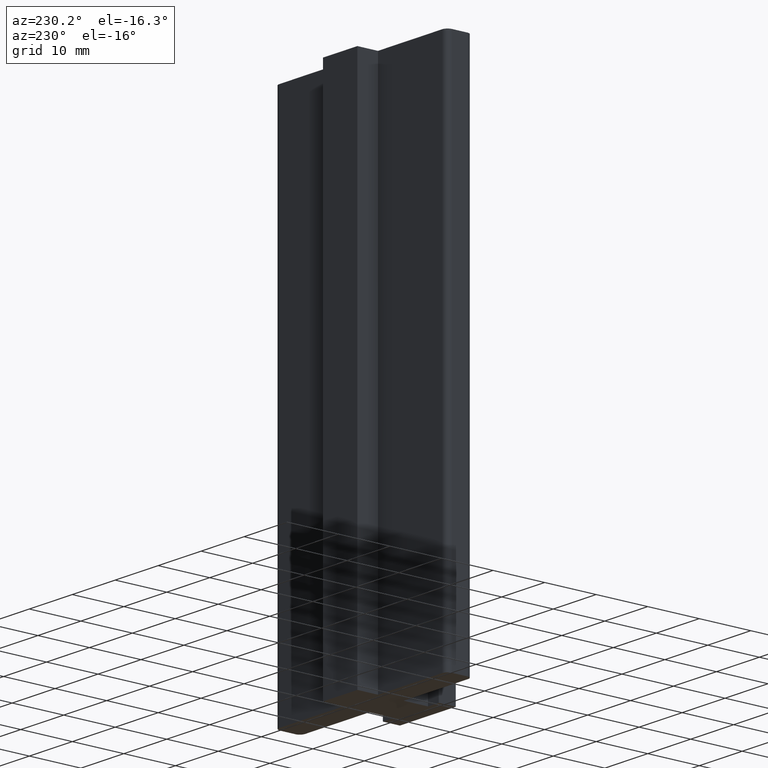
[diagram: clean part render]
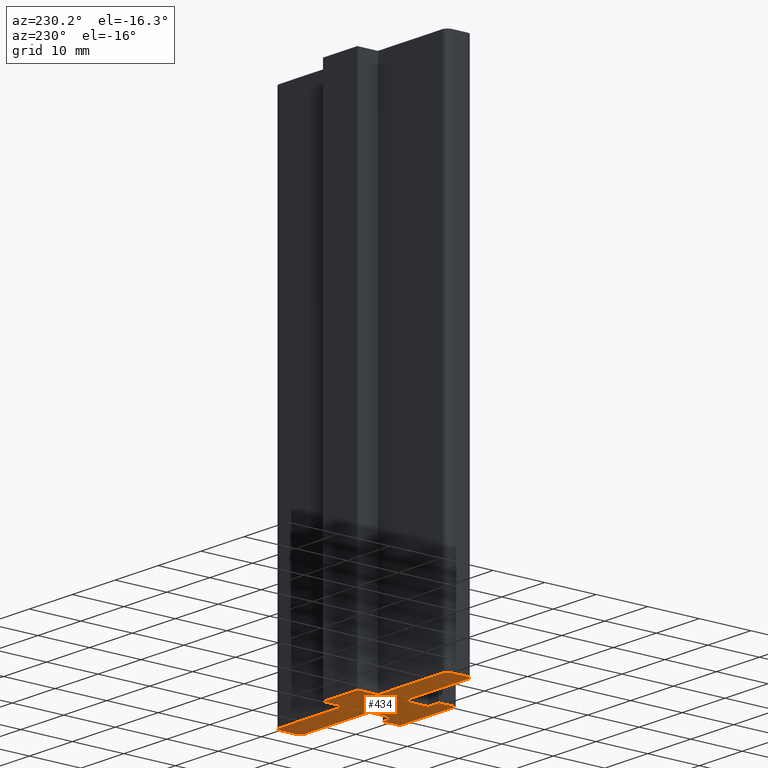
[diagram: same view with one face highlighted and labeled with its STEP entity id]
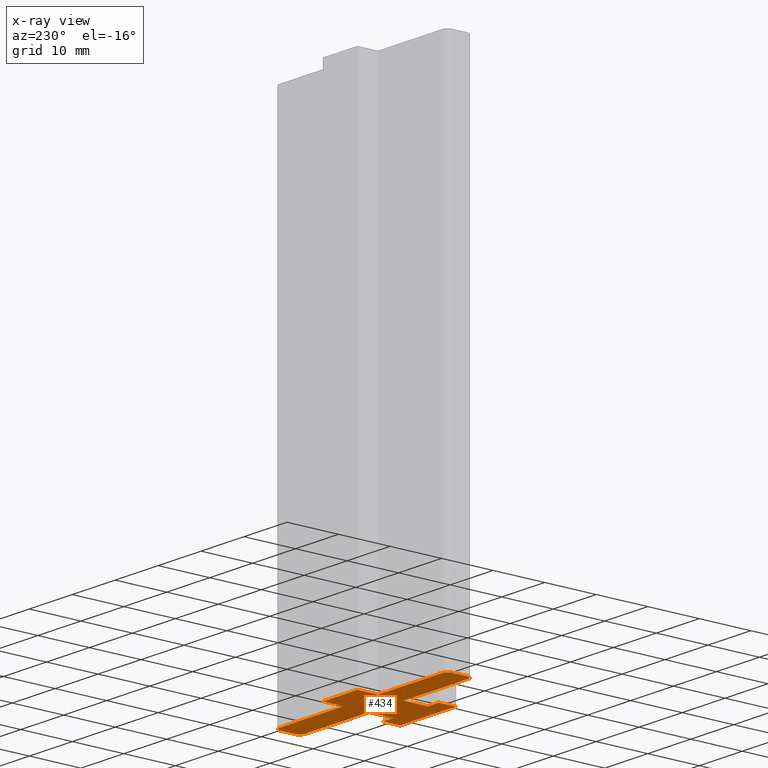
[diagram: x-ray of the same camera — body ghosted, the highlighted face saturated]
A machine part, auxiliary view. The second image highlights one B-rep face of the part: STEP entity #434.
The next image is the same camera in x-ray: the body ghosted, the highlighted face saturated — about 0% of this face is hidden behind the body in this view.
In plain terms, the highlighted planar face has unit normal (0, 0, 1).
Its self-contained STEP definition (entity closure, byte-faithful):
#15=CIRCLE('',#440,1.);
#17=CIRCLE('',#444,1.);
#19=CIRCLE('',#456,1.);
#21=CIRCLE('',#460,1.);
#48=FACE_OUTER_BOUND('',#70,.T.);
#70=EDGE_LOOP('',(#375,#376,#377,#378,#379,#380,#381,#382,#383,#384,#385,
#386,#387,#388,#389,#390,#391,#392,#393,#394));
#71=LINE('',#585,#123);
#75=LINE('',#593,#127);
#79=LINE('',#605,#131);
#83=LINE('',#617,#135);
#86=LINE('',#623,#138);
#89=LINE('',#629,#141);
#92=LINE('',#635,#144);
#95=LINE('',#641,#147);
#98=LINE('',#647,#150);
#101=LINE('',#653,#153);
#104=LINE('',#659,#156);
#107=LINE('',#665,#159);
#111=LINE('',#677,#163);
#115=LINE('',#689,#167);
#118=LINE('',#695,#170);
#121=LINE('',#700,#173);
#123=VECTOR('',#471,4.);
#127=VECTOR('',#477,15.);
#131=VECTOR('',#489,3.);
#135=VECTOR('',#501,15.);
#138=VECTOR('',#506,4.7);
#141=VECTOR('',#511,2.5);
#144=VECTOR('',#516,3.3);
#147=VECTOR('',#521,13.);
#150=VECTOR('',#526,3.3);
#153=VECTOR('',#531,2.5);
#156=VECTOR('',#536,4.7);
#159=VECTOR('',#541,15.);
#163=VECTOR('',#553,3.);
#167=VECTOR('',#565,15.);
#170=VECTOR('',#570,4.);
#173=VECTOR('',#575,8.);
#175=VERTEX_POINT('',#583);
#176=VERTEX_POINT('',#584);
#179=VERTEX_POINT('',#592);
#181=VERTEX_POINT('',#598);
#183=VERTEX_POINT('',#604);
#185=VERTEX_POINT('',#610);
#187=VERTEX_POINT('',#616);
#189=VERTEX_POINT('',#622);
#191=VERTEX_POINT('',#628);
#193=VERTEX_POINT('',#634);
#195=VERTEX_POINT('',#640);
#197=VERTEX_POINT('',#646);
#199=VERTEX_POINT('',#652);
#201=VERTEX_POINT('',#658);
#203=VERTEX_POINT('',#664);
#205=VERTEX_POINT('',#670);
#207=VERTEX_POINT('',#676);
#209=VERTEX_POINT('',#682);
#211=VERTEX_POINT('',#688);
#213=VERTEX_POINT('',#694);
#215=EDGE_CURVE('',#175,#176,#71,.T.);
#219=EDGE_CURVE('',#179,#175,#75,.T.);
#222=EDGE_CURVE('',#181,#179,#15,.T.);
#225=EDGE_CURVE('',#183,#181,#79,.T.);
#228=EDGE_CURVE('',#185,#183,#17,.T.);
#231=EDGE_CURVE('',#187,#185,#83,.T.);
#234=EDGE_CURVE('',#189,#187,#86,.T.);
#237=EDGE_CURVE('',#191,#189,#89,.T.);
#240=EDGE_CURVE('',#193,#191,#92,.T.);
#243=EDGE_CURVE('',#195,#193,#95,.T.);
#246=EDGE_CURVE('',#197,#195,#98,.T.);
#249=EDGE_CURVE('',#199,#197,#101,.T.);
#252=EDGE_CURVE('',#201,#199,#104,.T.);
#255=EDGE_CURVE('',#203,#201,#107,.T.);
#258=EDGE_CURVE('',#205,#203,#19,.T.);
#261=EDGE_CURVE('',#207,#205,#111,.T.);
#264=EDGE_CURVE('',#209,#207,#21,.T.);
#267=EDGE_CURVE('',#211,#209,#115,.T.);
#270=EDGE_CURVE('',#213,#211,#118,.T.);
#273=EDGE_CURVE('',#176,#213,#121,.T.);
#375=ORIENTED_EDGE('',*,*,#273,.F.);
#376=ORIENTED_EDGE('',*,*,#215,.F.);
#377=ORIENTED_EDGE('',*,*,#219,.F.);
#378=ORIENTED_EDGE('',*,*,#222,.F.);
#379=ORIENTED_EDGE('',*,*,#225,.F.);
#380=ORIENTED_EDGE('',*,*,#228,.F.);
#381=ORIENTED_EDGE('',*,*,#231,.F.);
#382=ORIENTED_EDGE('',*,*,#234,.F.);
#383=ORIENTED_EDGE('',*,*,#237,.F.);
#384=ORIENTED_EDGE('',*,*,#240,.F.);
#385=ORIENTED_EDGE('',*,*,#243,.F.);
#386=ORIENTED_EDGE('',*,*,#246,.F.);
#387=ORIENTED_EDGE('',*,*,#249,.F.);
#388=ORIENTED_EDGE('',*,*,#252,.F.);
#389=ORIENTED_EDGE('',*,*,#255,.F.);
#390=ORIENTED_EDGE('',*,*,#258,.F.);
#391=ORIENTED_EDGE('',*,*,#261,.F.);
#392=ORIENTED_EDGE('',*,*,#264,.F.);
#393=ORIENTED_EDGE('',*,*,#267,.F.);
#394=ORIENTED_EDGE('',*,*,#270,.F.);
#412=PLANE('',#466);
#434=ADVANCED_FACE('',(#48),#412,.F.);
#440=AXIS2_PLACEMENT_3D('',#599,#482,#483);
#444=AXIS2_PLACEMENT_3D('',#611,#494,#495);
#456=AXIS2_PLACEMENT_3D('',#671,#546,#547);
#460=AXIS2_PLACEMENT_3D('',#683,#558,#559);
#466=AXIS2_PLACEMENT_3D('',#703,#579,#580);
#471=DIRECTION('',(0.,1.,0.));
#477=DIRECTION('',(-1.,0.,0.));
#482=DIRECTION('center_axis',(0.,0.,1.));
#483=DIRECTION('ref_axis',(1.,-1.11022302462516E-15,0.));
#489=DIRECTION('',(0.,1.,0.));
#494=DIRECTION('center_axis',(0.,0.,1.));
#495=DIRECTION('ref_axis',(0.,-1.,0.));
#501=DIRECTION('',(1.,0.,0.));
#506=DIRECTION('',(0.,1.,0.));
#511=DIRECTION('',(-1.,0.,0.));
#516=DIRECTION('',(0.,1.,0.));
#521=DIRECTION('',(1.,0.,0.));
#526=DIRECTION('',(0.,-1.,0.));
#531=DIRECTION('',(-1.,0.,0.));
#536=DIRECTION('',(0.,-1.,0.));
#541=DIRECTION('',(1.,0.,0.));
#546=DIRECTION('center_axis',(0.,0.,1.));
#547=DIRECTION('ref_axis',(-1.,0.,0.));
#553=DIRECTION('',(0.,-1.,0.));
#558=DIRECTION('center_axis',(0.,0.,1.));
#559=DIRECTION('ref_axis',(0.,1.,0.));
#565=DIRECTION('',(-1.,0.,0.));
#570=DIRECTION('',(0.,-1.,0.));
#575=DIRECTION('',(-1.,0.,0.));
#579=DIRECTION('center_axis',(0.,0.,1.));
#580=DIRECTION('ref_axis',(1.,0.,0.));
#583=CARTESIAN_POINT('',(4.,7.35,0.));
#584=CARTESIAN_POINT('',(4.,11.35,0.));
#585=CARTESIAN_POINT('',(4.,7.35,0.));
#592=CARTESIAN_POINT('',(19.,7.35,0.));
#593=CARTESIAN_POINT('',(19.,7.35,0.));
#598=CARTESIAN_POINT('',(20.,6.35,0.));
#599=CARTESIAN_POINT('Origin',(19.,6.35,0.));
#604=CARTESIAN_POINT('',(20.,3.35,0.));
#605=CARTESIAN_POINT('',(20.,3.35,0.));
#610=CARTESIAN_POINT('',(19.,2.35,0.));
#611=CARTESIAN_POINT('Origin',(19.,3.35,0.));
#616=CARTESIAN_POINT('',(4.,2.35,0.));
#617=CARTESIAN_POINT('',(4.,2.35,0.));
#622=CARTESIAN_POINT('',(4.,-2.35,0.));
#623=CARTESIAN_POINT('',(4.,-2.35,0.));
#628=CARTESIAN_POINT('',(6.5,-2.35,0.));
#629=CARTESIAN_POINT('',(6.5,-2.35,0.));
#634=CARTESIAN_POINT('',(6.5,-5.65,0.));
#635=CARTESIAN_POINT('',(6.5,-5.65,0.));
#640=CARTESIAN_POINT('',(-6.5,-5.65,0.));
#641=CARTESIAN_POINT('',(-6.5,-5.65,0.));
#646=CARTESIAN_POINT('',(-6.5,-2.35,0.));
#647=CARTESIAN_POINT('',(-6.5,-2.35,0.));
#652=CARTESIAN_POINT('',(-4.,-2.35,0.));
#653=CARTESIAN_POINT('',(-4.,-2.35,0.));
#658=CARTESIAN_POINT('',(-4.,2.35,0.));
#659=CARTESIAN_POINT('',(-4.,2.35,0.));
#664=CARTESIAN_POINT('',(-19.,2.35,0.));
#665=CARTESIAN_POINT('',(-19.,2.35,0.));
#670=CARTESIAN_POINT('',(-20.,3.35,0.));
#671=CARTESIAN_POINT('Origin',(-19.,3.35,0.));
#676=CARTESIAN_POINT('',(-20.,6.35,0.));
#677=CARTESIAN_POINT('',(-20.,6.35,0.));
#682=CARTESIAN_POINT('',(-19.,7.35,0.));
#683=CARTESIAN_POINT('Origin',(-19.,6.35,0.));
#688=CARTESIAN_POINT('',(-4.,7.35,0.));
#689=CARTESIAN_POINT('',(-4.,7.35,0.));
#694=CARTESIAN_POINT('',(-4.,11.35,0.));
#695=CARTESIAN_POINT('',(-4.,11.35,0.));
#700=CARTESIAN_POINT('',(4.,11.35,0.));
#703=CARTESIAN_POINT('Origin',(0.,3.28843700226469,0.));